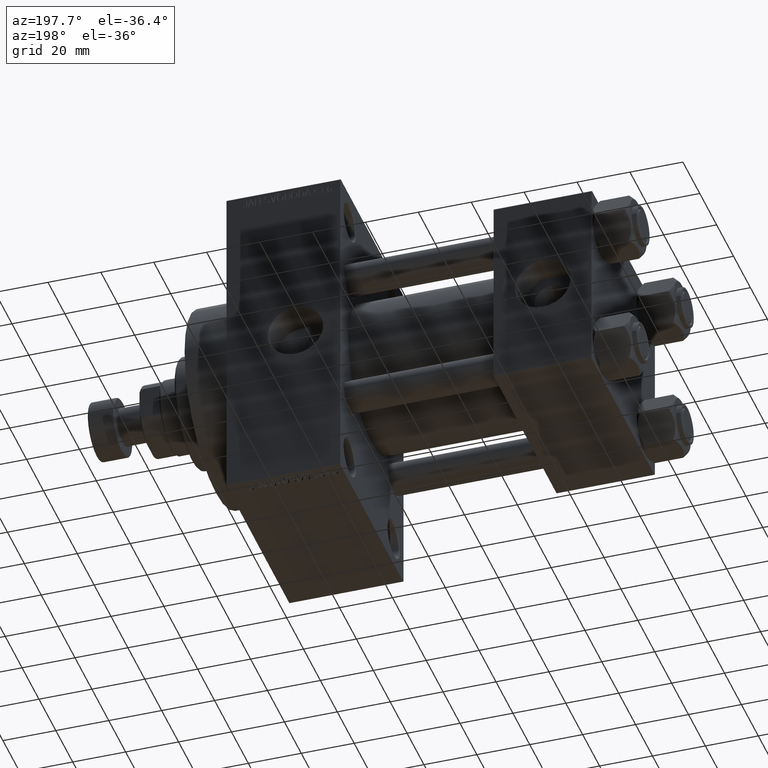
[diagram: clean part render]
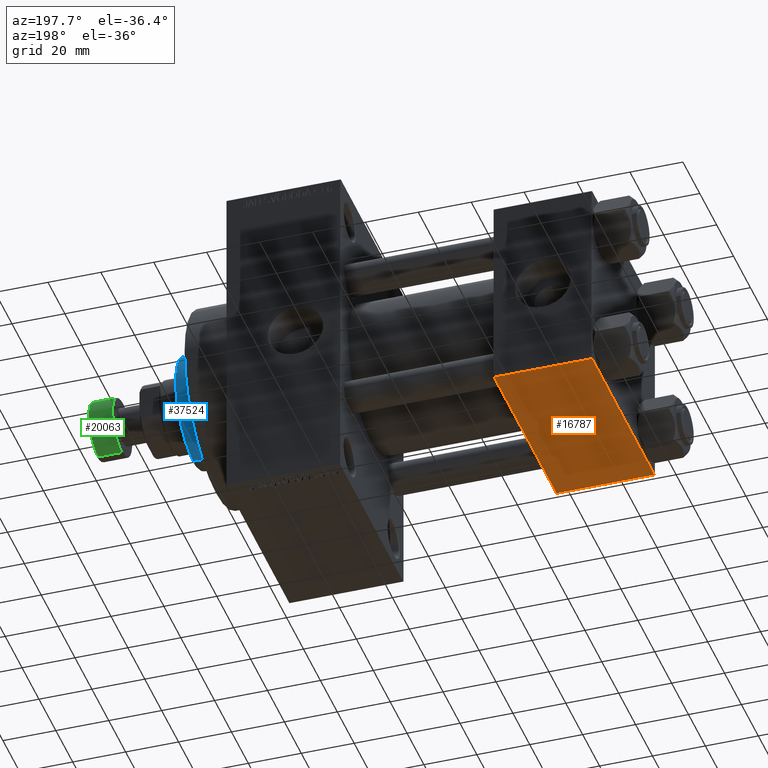
[diagram: same view with three faces highlighted in distinct colors, each labeled with its STEP entity id]
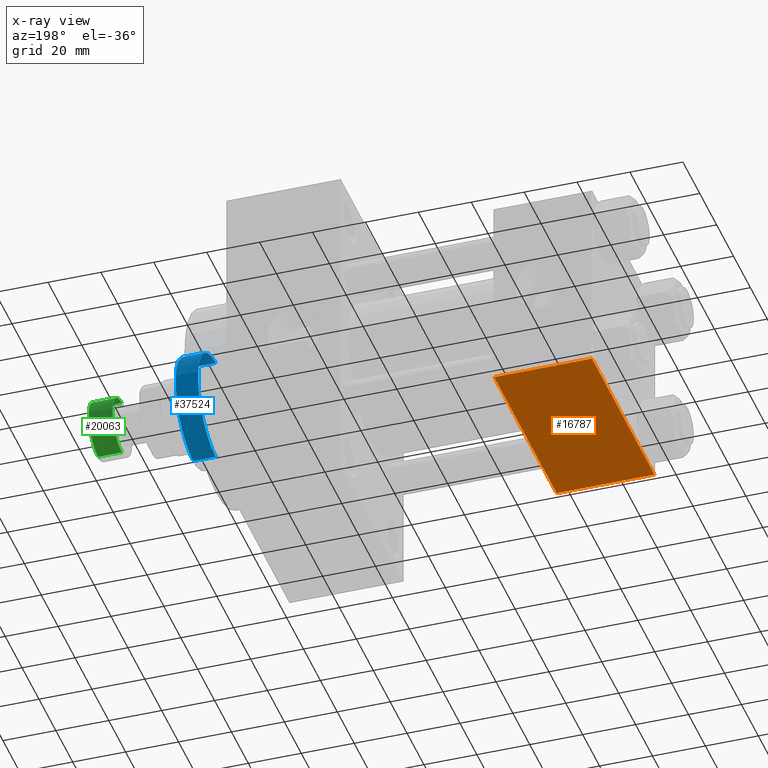
[diagram: x-ray of the same camera — body ghosted, the three highlighted faces saturated]
A machine part, auxiliary view with three faces highlighted in distinct colors.
The next image is the same camera in x-ray (body ghosted, the three faces saturated) — at least one of them is partly hidden behind the body in this view.
Their STEP definitions:

[orange] entity #16787 — the highlighted planar face has unit normal (0, 0, -1).
#374 = VECTOR ( 'NONE', #31407, 1000.000000000000000 ) ;
#2302 = ORIENTED_EDGE ( 'NONE', *, *, #29576, .T. ) ;
#3098 = VERTEX_POINT ( 'NONE', #45049 ) ;
#3331 = AXIS2_PLACEMENT_3D ( 'NONE', #9808, #39752, #12589 ) ;
#4004 = VECTOR ( 'NONE', #11968, 1000.000000000000000 ) ;
#4099 = CARTESIAN_POINT ( 'NONE',  ( 37.00000000000000000, 36.99999999999997868, -37.50000000000000000 ) ) ;
#4154 = CARTESIAN_POINT ( 'NONE',  ( 37.00000000000000000, -37.00000000000002132, -37.50000000000000711 ) ) ;
#5845 = DIRECTION ( 'NONE',  ( 1.000000000000000000, 0.000000000000000000, 0.000000000000000000 ) ) ;
#6841 = LINE ( 'NONE', #22194, #10062 ) ;
#9007 = ORIENTED_EDGE ( 'NONE', *, *, #33675, .T. ) ;
#9808 = CARTESIAN_POINT ( 'NONE',  ( 37.00000000000000000, 37.49999999999999289, -37.50000000000000000 ) ) ;
#10062 = VECTOR ( 'NONE', #10362, 1000.000000000000000 ) ;
#10362 = DIRECTION ( 'NONE',  ( -1.000000000000000000, 0.000000000000000000, 0.000000000000000000 ) ) ;
#11968 = DIRECTION ( 'NONE',  ( 0.000000000000000000, -1.000000000000000000, -9.251858538542972814E-17 ) ) ;
#12589 = DIRECTION ( 'NONE',  ( 0.000000000000000000, 1.000000000000000000, 9.251858538542972814E-17 ) ) ;
#13411 = EDGE_CURVE ( 'NONE', #3098, #41800, #19289, .T. ) ;
#16787 = ADVANCED_FACE ( 'NONE', ( #44268 ), #24924, .T. ) ;
#19289 = LINE ( 'NONE', #46431, #4004 ) ;
#21448 = LINE ( 'NONE', #43827, #38321 ) ;
#22194 = CARTESIAN_POINT ( 'NONE',  ( 0.000000000000000000, -37.00000000000002132, -37.50000000000000711 ) ) ;
#22222 = ORIENTED_EDGE ( 'NONE', *, *, #43631, .T. ) ;
#23145 = CARTESIAN_POINT ( 'NONE',  ( 37.00000000000000000, 37.49999999999999289, -37.50000000000000000 ) ) ;
#24503 = EDGE_LOOP ( 'NONE', ( #45393, #9007, #22222, #2302 ) ) ;
#24924 = PLANE ( 'NONE',  #3331 ) ;
#28152 = VERTEX_POINT ( 'NONE', #4154 ) ;
#28458 = VERTEX_POINT ( 'NONE', #4099 ) ;
#29576 = EDGE_CURVE ( 'NONE', #28152, #41800, #6841, .T. ) ;
#31407 = DIRECTION ( 'NONE',  ( 0.000000000000000000, -1.000000000000000000, -9.251858538542972814E-17 ) ) ;
#33675 = EDGE_CURVE ( 'NONE', #3098, #28458, #21448, .T. ) ;
#38321 = VECTOR ( 'NONE', #5845, 1000.000000000000000 ) ;
#39752 = DIRECTION ( 'NONE',  ( 0.000000000000000000, 9.251858538542972814E-17, -1.000000000000000000 ) ) ;
#41800 = VERTEX_POINT ( 'NONE', #45781 ) ;
#42250 = LINE ( 'NONE', #23145, #374 ) ;
#43631 = EDGE_CURVE ( 'NONE', #28458, #28152, #42250, .T. ) ;
#43827 = CARTESIAN_POINT ( 'NONE',  ( 37.00000000000000000, 36.99999999999997868, -37.50000000000000000 ) ) ;
#44268 = FACE_OUTER_BOUND ( 'NONE', #24503, .T. ) ;
#45049 = CARTESIAN_POINT ( 'NONE',  ( 0.000000000000000000, 36.99999999999997868, -37.50000000000000000 ) ) ;
#45393 = ORIENTED_EDGE ( 'NONE', *, *, #13411, .F. ) ;
#45781 = CARTESIAN_POINT ( 'NONE',  ( 0.000000000000000000, -37.00000000000002132, -37.50000000000000711 ) ) ;
#46431 = CARTESIAN_POINT ( 'NONE',  ( 0.000000000000000000, 37.49999999999999289, -37.50000000000000000 ) ) ;

[blue] entity #37524 — the highlighted cylindrical surface (partial cylindrical patch) has radius 21 mm, axis along (-1, 0, 0).
#873 = EDGE_LOOP ( 'NONE', ( #30825, #4517, #21416, #4763 ) ) ;
#947 = DIRECTION ( 'NONE',  ( -1.000000000000000000, 0.000000000000000000, 0.000000000000000000 ) ) ;
#1075 = CARTESIAN_POINT ( 'NONE',  ( 21.00000000000000000, 2.571758278209441661E-15, 51.75999999999999801 ) ) ;
#2057 = AXIS2_PLACEMENT_3D ( 'NONE', #22531, #34815, #49687 ) ;
#2875 = VECTOR ( 'NONE', #19114, 1000.000000000000000 ) ;
#4517 = ORIENTED_EDGE ( 'NONE', *, *, #44370, .T. ) ;
#4763 = ORIENTED_EDGE ( 'NONE', *, *, #16786, .T. ) ;
#6368 = CARTESIAN_POINT ( 'NONE',  ( -21.00000000000000000, 0.000000000000000000, 51.75999999999999801 ) ) ;
#6384 = LINE ( 'NONE', #21975, #38146 ) ;
#12036 = LINE ( 'NONE', #46011, #2875 ) ;
#16285 = FACE_OUTER_BOUND ( 'NONE', #873, .T. ) ;
#16786 = EDGE_CURVE ( 'NONE', #16816, #40028, #31416, .T. ) ;
#16816 = VERTEX_POINT ( 'NONE', #44024 ) ;
#17370 = DIRECTION ( 'NONE',  ( 1.000000000000000000, 0.000000000000000000, 0.000000000000000000 ) ) ;
#17649 = VERTEX_POINT ( 'NONE', #6368 ) ;
#18578 = AXIS2_PLACEMENT_3D ( 'NONE', #28194, #48045, #17370 ) ;
#18911 = CIRCLE ( 'NONE', #2057, 21.00000000000000000 ) ;
#19114 = DIRECTION ( 'NONE',  ( -0.000000000000000000, -0.000000000000000000, -1.000000000000000000 ) ) ;
#21416 = ORIENTED_EDGE ( 'NONE', *, *, #40648, .T. ) ;
#21975 = CARTESIAN_POINT ( 'NONE',  ( -21.00000000000000000, 0.000000000000000000, 52.25999999999999801 ) ) ;
#22531 = CARTESIAN_POINT ( 'NONE',  ( 0.000000000000000000, 0.000000000000000000, 51.75999999999999801 ) ) ;
#22762 = AXIS2_PLACEMENT_3D ( 'NONE', #38667, #42946, #947 ) ;
#25342 = VERTEX_POINT ( 'NONE', #1075 ) ;
#27122 = CYLINDRICAL_SURFACE ( 'NONE', #22762, 21.00000000000000000 ) ;
#28194 = CARTESIAN_POINT ( 'NONE',  ( 0.000000000000000000, 0.000000000000000000, 43.25999999999999801 ) ) ;
#30825 = ORIENTED_EDGE ( 'NONE', *, *, #42704, .F. ) ;
#31416 = CIRCLE ( 'NONE', #18578, 21.00000000000000000 ) ;
#34815 = DIRECTION ( 'NONE',  ( 0.000000000000000000, 0.000000000000000000, -1.000000000000000000 ) ) ;
#37524 = ADVANCED_FACE ( 'NONE', ( #16285 ), #27122, .T. ) ;
#38146 = VECTOR ( 'NONE', #41585, 1000.000000000000000 ) ;
#38667 = CARTESIAN_POINT ( 'NONE',  ( 0.000000000000000000, 0.000000000000000000, 52.25999999999999801 ) ) ;
#40028 = VERTEX_POINT ( 'NONE', #44720 ) ;
#40648 = EDGE_CURVE ( 'NONE', #17649, #16816, #6384, .T. ) ;
#41585 = DIRECTION ( 'NONE',  ( -0.000000000000000000, -0.000000000000000000, -1.000000000000000000 ) ) ;
#42704 = EDGE_CURVE ( 'NONE', #25342, #40028, #12036, .T. ) ;
#42946 = DIRECTION ( 'NONE',  ( -0.000000000000000000, -0.000000000000000000, -1.000000000000000000 ) ) ;
#44024 = CARTESIAN_POINT ( 'NONE',  ( -21.00000000000000000, 0.000000000000000000, 43.25999999999999801 ) ) ;
#44370 = EDGE_CURVE ( 'NONE', #25342, #17649, #18911, .T. ) ;
#44720 = CARTESIAN_POINT ( 'NONE',  ( 21.00000000000000000, 2.571758278209441661E-15, 43.25999999999999801 ) ) ;
#46011 = CARTESIAN_POINT ( 'NONE',  ( 21.00000000000000000, 2.571758278209441661E-15, 52.25999999999999801 ) ) ;
#48045 = DIRECTION ( 'NONE',  ( 0.000000000000000000, 0.000000000000000000, 1.000000000000000000 ) ) ;
#49687 = DIRECTION ( 'NONE',  ( 1.000000000000000000, 0.000000000000000000, 0.000000000000000000 ) ) ;

[green] entity #20063 — the highlighted cylindrical surface (edge-blend (fillet) strip) has radius 11 mm, axis along (1, 0, 0).
#7322 = VERTEX_POINT ( 'NONE', #18991 ) ;
#8442 = ORIENTED_EDGE ( 'NONE', *, *, #47460, .F. ) ;
#8680 = CARTESIAN_POINT ( 'NONE',  ( -11.00000000000000000, 1.347111479062088405E-15, -0.5000000000000004441 ) ) ;
#10236 = LINE ( 'NONE', #25846, #18905 ) ;
#10464 = FACE_OUTER_BOUND ( 'NONE', #11145, .T. ) ;
#11036 = CARTESIAN_POINT ( 'NONE',  ( 11.00000000000000000, 0.000000000000000000, -0.5000000000000004441 ) ) ;
#11145 = EDGE_LOOP ( 'NONE', ( #29857, #49310, #45372, #8442 ) ) ;
#11519 = CIRCLE ( 'NONE', #13944, 11.00000000000000000 ) ;
#12444 = DIRECTION ( 'NONE',  ( 1.000000000000000000, 0.000000000000000000, 0.000000000000000000 ) ) ;
#13752 = DIRECTION ( 'NONE',  ( 1.000000000000000000, 0.000000000000000000, 0.000000000000000000 ) ) ;
#13944 = AXIS2_PLACEMENT_3D ( 'NONE', #27554, #19998, #12444 ) ;
#18415 = LINE ( 'NONE', #26230, #20602 ) ;
#18905 = VECTOR ( 'NONE', #41435, 1000.000000000000000 ) ;
#18991 = CARTESIAN_POINT ( 'NONE',  ( -11.00000000000000000, 1.347111479062088405E-15, -9.500000000000000000 ) ) ;
#19950 = EDGE_CURVE ( 'NONE', #38629, #46521, #27525, .T. ) ;
#19998 = DIRECTION ( 'NONE',  ( 0.000000000000000000, 0.000000000000000000, 1.000000000000000000 ) ) ;
#20063 = ADVANCED_FACE ( 'NONE', ( #10464 ), #29836, .T. ) ;
#20602 = VECTOR ( 'NONE', #30230, 1000.000000000000000 ) ;
#21313 = DIRECTION ( 'NONE',  ( 0.000000000000000000, 0.000000000000000000, 1.000000000000000000 ) ) ;
#24597 = CARTESIAN_POINT ( 'NONE',  ( 0.000000000000000000, 0.000000000000000000, -0.5000000000000004441 ) ) ;
#25846 = CARTESIAN_POINT ( 'NONE',  ( -11.00000000000000000, 1.347111479062088405E-15, -10.00000000000000000 ) ) ;
#25928 = AXIS2_PLACEMENT_3D ( 'NONE', #33370, #21313, #13752 ) ;
#26194 = EDGE_CURVE ( 'NONE', #38021, #7322, #11519, .T. ) ;
#26230 = CARTESIAN_POINT ( 'NONE',  ( 11.00000000000000000, 0.000000000000000000, -10.00000000000000000 ) ) ;
#27525 = CIRCLE ( 'NONE', #47586, 11.00000000000000000 ) ;
#27554 = CARTESIAN_POINT ( 'NONE',  ( 0.000000000000000000, 0.000000000000000000, -9.500000000000000000 ) ) ;
#29836 = CYLINDRICAL_SURFACE ( 'NONE', #25928, 11.00000000000000000 ) ;
#29857 = ORIENTED_EDGE ( 'NONE', *, *, #26194, .T. ) ;
#30027 = EDGE_CURVE ( 'NONE', #7322, #38629, #10236, .T. ) ;
#30230 = DIRECTION ( 'NONE',  ( 0.000000000000000000, 0.000000000000000000, 1.000000000000000000 ) ) ;
#33370 = CARTESIAN_POINT ( 'NONE',  ( 0.000000000000000000, 0.000000000000000000, -10.00000000000000000 ) ) ;
#36390 = DIRECTION ( 'NONE',  ( 1.000000000000000000, 0.000000000000000000, 0.000000000000000000 ) ) ;
#37764 = CARTESIAN_POINT ( 'NONE',  ( 11.00000000000000000, 0.000000000000000000, -9.500000000000000000 ) ) ;
#38021 = VERTEX_POINT ( 'NONE', #37764 ) ;
#38629 = VERTEX_POINT ( 'NONE', #8680 ) ;
#39164 = DIRECTION ( 'NONE',  ( -0.000000000000000000, -0.000000000000000000, -1.000000000000000000 ) ) ;
#41435 = DIRECTION ( 'NONE',  ( 0.000000000000000000, 0.000000000000000000, 1.000000000000000000 ) ) ;
#45372 = ORIENTED_EDGE ( 'NONE', *, *, #19950, .T. ) ;
#46521 = VERTEX_POINT ( 'NONE', #11036 ) ;
#47460 = EDGE_CURVE ( 'NONE', #38021, #46521, #18415, .T. ) ;
#47586 = AXIS2_PLACEMENT_3D ( 'NONE', #24597, #39164, #36390 ) ;
#49310 = ORIENTED_EDGE ( 'NONE', *, *, #30027, .T. ) ;